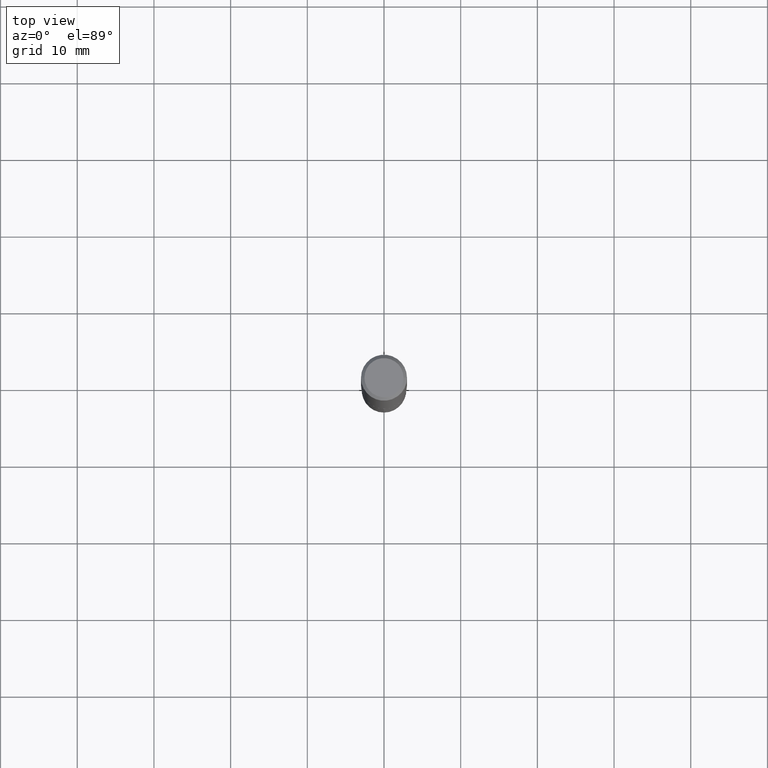
[diagram: clean part render]
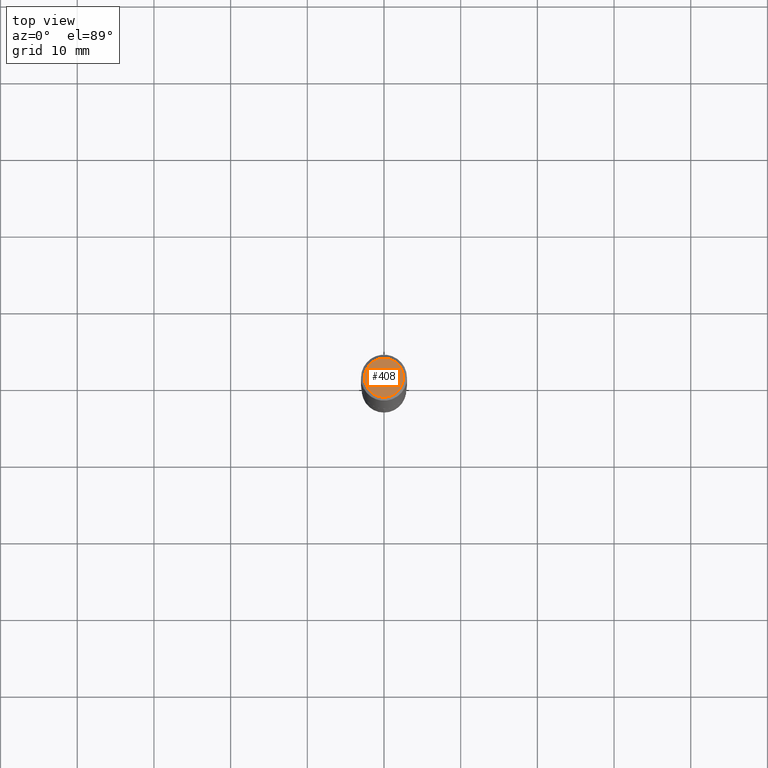
[diagram: same view with one face highlighted and labeled with its STEP entity id]
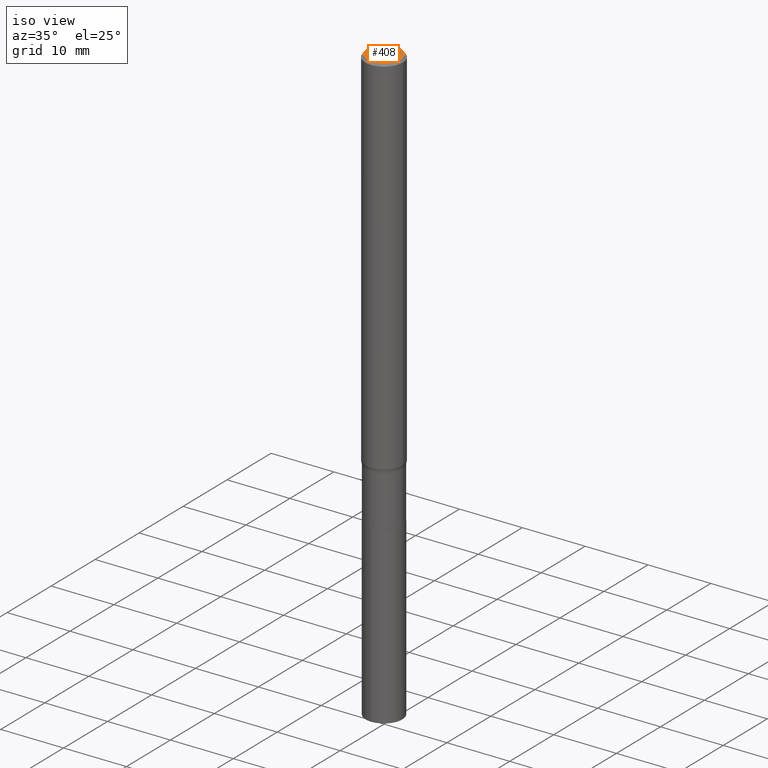
[diagram: same view with one face highlighted and labeled with its STEP entity id]
A machine part, top view. The second image highlights one B-rep face of the part: STEP entity #408.
A second angle (iso view) of the same face is appended — the face is thin or edge-on in the first view.
In plain terms, the highlighted planar face has unit normal (0, -0, -1).
Its self-contained STEP definition (entity closure, byte-faithful):
#7 = CIRCLE ( 'NONE', #426, 0.1003850000000000159 ) ;
#29 = CARTESIAN_POINT ( 'NONE',  ( 3.507850874923593654E-46, -5.008281372579124849E-32, -1.434428795841294606E-17 ) ) ;
#35 = EDGE_CURVE ( 'NONE', #384, #416, #7, .T. ) ;
#47 = ORIENTED_EDGE ( 'NONE', *, *, #68, .T. ) ;
#68 = EDGE_CURVE ( 'NONE', #416, #384, #401, .T. ) ;
#73 = ORIENTED_EDGE ( 'NONE', *, *, #35, .T. ) ;
#81 = DIRECTION ( 'NONE',  ( 1.000000000000000000, -6.982962677686266711E-15, 4.875668750515085695E-29 ) ) ;
#103 = EDGE_LOOP ( 'NONE', ( #73, #47 ) ) ;
#183 = AXIS2_PLACEMENT_3D ( 'NONE', #341, #414, #81 ) ;
#218 = CARTESIAN_POINT ( 'NONE',  ( 0.1003850000000000159, -7.803837484803599345E-16, -2.868857591682071522E-17 ) ) ;
#286 = DIRECTION ( 'NONE',  ( -1.000000000000000000, 6.982962677686265922E-15, -4.876176775795935793E-29 ) ) ;
#313 = FACE_OUTER_BOUND ( 'NONE', #103, .T. ) ;
#317 = DIRECTION ( 'NONE',  ( 2.438088387897960049E-29, -3.491481338843145188E-15, -1.000000000000000000 ) ) ;
#335 = AXIS2_PLACEMENT_3D ( 'NONE', #29, #317, #286 ) ;
#341 = CARTESIAN_POINT ( 'NONE',  ( 7.015701749847187307E-46, -1.001656274515824970E-31, -2.868857591682589212E-17 ) ) ;
#344 = DIRECTION ( 'NONE',  ( -2.445468806185136597E-29, 3.491481338843145583E-15, 1.000000000000000000 ) ) ;
#372 = DIRECTION ( 'NONE',  ( 1.000000000000000000, -6.982962677686266711E-15, 4.875668750515085695E-29 ) ) ;
#378 = CARTESIAN_POINT ( 'NONE',  ( 7.015701749847187307E-46, -1.001656274515824970E-31, -2.868857591682589212E-17 ) ) ;
#384 = VERTEX_POINT ( 'NONE', #395 ) ;
#395 = CARTESIAN_POINT ( 'NONE',  ( -0.1003850000000000159, 7.319105043583386689E-16, -2.868857591683090262E-17 ) ) ;
#400 = PLANE ( 'NONE',  #335 ) ;
#401 = CIRCLE ( 'NONE', #183, 0.1003850000000000159 ) ;
#408 = ADVANCED_FACE ( 'NONE', ( #313 ), #400, .F. ) ;
#414 = DIRECTION ( 'NONE',  ( -2.445468806185136597E-29, 3.491481338843145583E-15, 1.000000000000000000 ) ) ;
#416 = VERTEX_POINT ( 'NONE', #218 ) ;
#426 = AXIS2_PLACEMENT_3D ( 'NONE', #378, #344, #372 ) ;